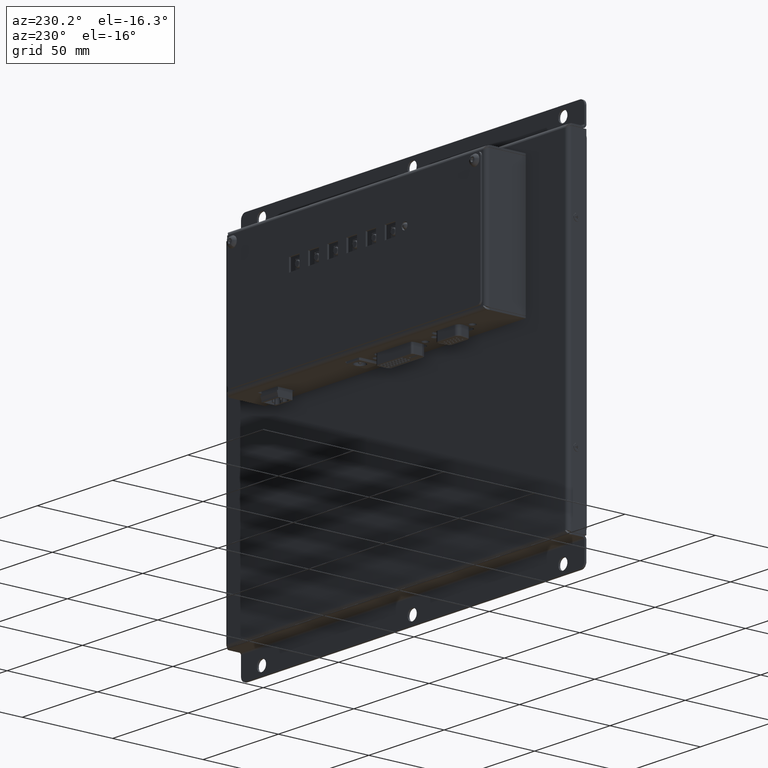
[diagram: clean part render]
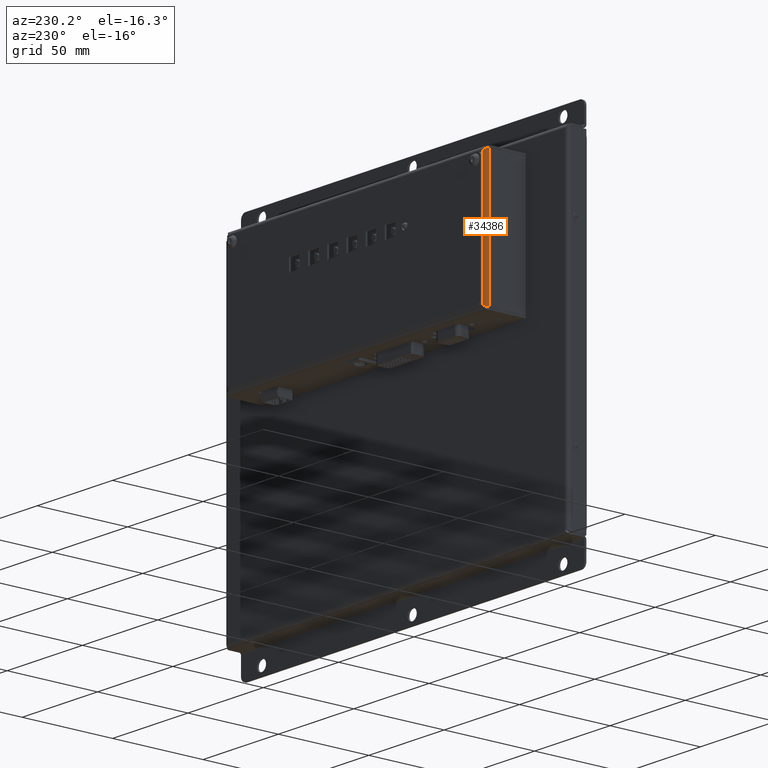
[diagram: same view with one face highlighted and labeled with its STEP entity id]
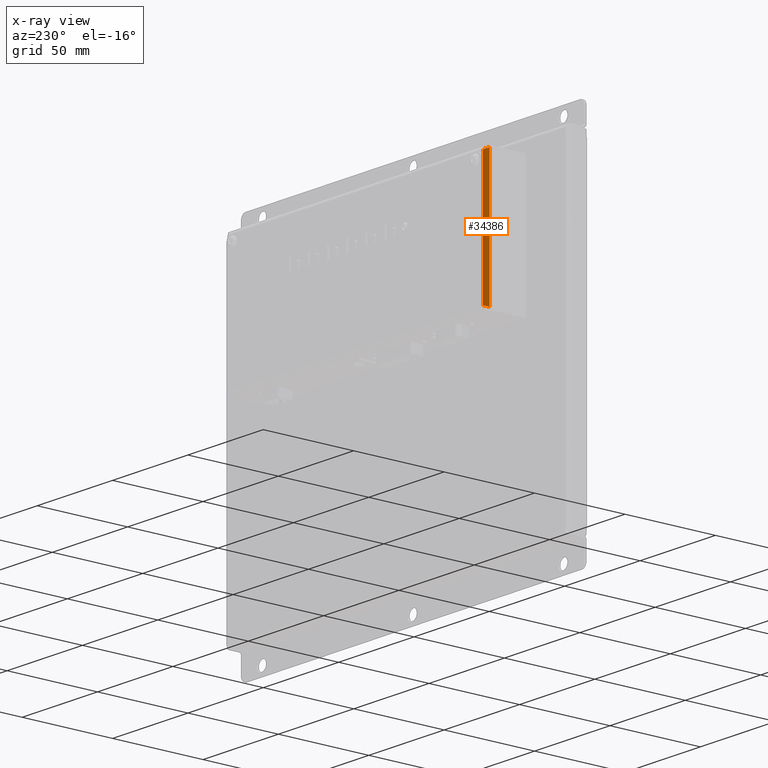
[diagram: x-ray of the same camera — body ghosted, the highlighted face saturated]
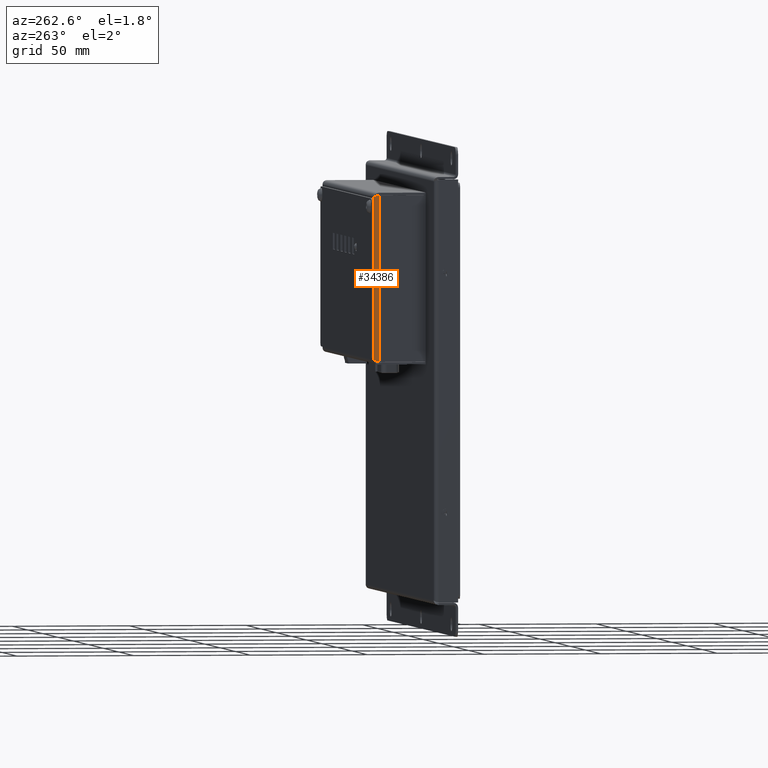
[diagram: same view with one face highlighted and labeled with its STEP entity id]
A machine part, auxiliary view. The second image highlights one B-rep face of the part: STEP entity #34386.
The next image is the same camera in x-ray: the body ghosted, the highlighted face saturated — about 0% of this face is hidden behind the body in this view.
A second angle (auxiliary view) of the same face is appended — the face is thin or edge-on in the first view.
In plain terms, the highlighted cylindrical surface (edge-blend (fillet) strip) has radius 2 mm, axis along (-0, 0, 1).
Its self-contained STEP definition (entity closure, byte-faithful):
#590=B_SPLINE_CURVE_WITH_KNOTS('',3,(#57881,#57882,#57883,#57884),
 .UNSPECIFIED.,.F.,.F.,(4,4),(-1.,-0.763258696678545),.UNSPECIFIED.);
#594=B_SPLINE_CURVE_WITH_KNOTS('',3,(#57974,#57975,#57976,#57977),
 .UNSPECIFIED.,.F.,.F.,(4,4),(-1.,-0.763258696678538),.UNSPECIFIED.);
#595=B_SPLINE_CURVE_WITH_KNOTS('',3,(#57978,#57979,#57980,#57981,#57982,
#57983,#57984),.UNSPECIFIED.,.F.,.F.,(4,3,4),(-0.763258696678538,-0.327110870012876,
0.),.UNSPECIFIED.);
#596=B_SPLINE_CURVE_WITH_KNOTS('',3,(#57985,#57986,#57987,#57988,#57989,
#57990,#57991),.UNSPECIFIED.,.F.,.F.,(4,3,4),(-0.763258696678545,-0.327110870012873,
0.),.UNSPECIFIED.);
#1057=CYLINDRICAL_SURFACE('',#37465,2.);
#4232=FACE_OUTER_BOUND('',#6310,.T.);
#6310=EDGE_LOOP('',(#30194,#30195,#30196,#30197,#30198,#30199));
#9545=LINE('',#57286,#12766);
#9656=LINE('',#57972,#12877);
#12766=VECTOR('',#45252,10.);
#12877=VECTOR('',#45607,10.);
#16978=VERTEX_POINT('',#57279);
#16981=VERTEX_POINT('',#57284);
#17107=VERTEX_POINT('',#57829);
#17110=VERTEX_POINT('',#57879);
#17116=VERTEX_POINT('',#57971);
#17117=VERTEX_POINT('',#57973);
#21400=EDGE_CURVE('',#16981,#16978,#9545,.T.);
#21582=EDGE_CURVE('',#17110,#17107,#590,.T.);
#21594=EDGE_CURVE('',#17116,#17110,#9656,.T.);
#21595=EDGE_CURVE('',#17116,#17117,#594,.T.);
#21596=EDGE_CURVE('',#17117,#16978,#595,.T.);
#21597=EDGE_CURVE('',#17107,#16981,#596,.T.);
#30194=ORIENTED_EDGE('',*,*,#21582,.F.);
#30195=ORIENTED_EDGE('',*,*,#21594,.F.);
#30196=ORIENTED_EDGE('',*,*,#21595,.T.);
#30197=ORIENTED_EDGE('',*,*,#21596,.T.);
#30198=ORIENTED_EDGE('',*,*,#21400,.F.);
#30199=ORIENTED_EDGE('',*,*,#21597,.F.);
#34386=ADVANCED_FACE('',(#4232),#1057,.T.);
#37465=AXIS2_PLACEMENT_3D('',#57970,#45605,#45606);
#45252=DIRECTION('',(0.,1.,0.));
#45605=DIRECTION('center_axis',(0.,1.,0.));
#45606=DIRECTION('ref_axis',(0.,0.,1.));
#45607=DIRECTION('',(-4.42712624180909E-18,-1.,7.59307267945326E-33));
#57279=CARTESIAN_POINT('',(84.5,34.5,1.38777878078145E-16));
#57284=CARTESIAN_POINT('',(84.5,-34.5,1.38777878078145E-16));
#57286=CARTESIAN_POINT('',(84.5,-17.75,0.));
#57829=CARTESIAN_POINT('',(86.363297267953,-35.1869328269982,-1.27327908298792));
#57879=CARTESIAN_POINT('',(86.5,-35.4,-2.00000000000002));
#57881=CARTESIAN_POINT('Ctrl Pts',(86.5,-35.4,-2.00000000000002));
#57882=CARTESIAN_POINT('Ctrl Pts',(86.5,-35.3289776090037,-1.75208508689473));
#57883=CARTESIAN_POINT('Ctrl Pts',(86.4521928227542,-35.2579552180072,-1.5039185667819));
#57884=CARTESIAN_POINT('Ctrl Pts',(86.3622294734653,-35.1869328270108,-1.27257576594918));
#57970=CARTESIAN_POINT('Origin',(84.5,-17.25,-2.));
#57971=CARTESIAN_POINT('',(86.5,35.4,-2.00000000000002));
#57972=CARTESIAN_POINT('',(86.5,1.52643269932482E-14,-2.00000000000001));
#57973=CARTESIAN_POINT('',(86.363297267953,35.1869328269982,-1.27327908298788));
#57974=CARTESIAN_POINT('Ctrl Pts',(86.5,35.4,-2.00000000000002));
#57975=CARTESIAN_POINT('Ctrl Pts',(86.5,35.3289776090036,-1.7520850868947));
#57976=CARTESIAN_POINT('Ctrl Pts',(86.4521928227542,35.2579552180071,-1.50391856678186));
#57977=CARTESIAN_POINT('Ctrl Pts',(86.3622294734653,35.1869328270107,-1.27257576594913));
#57978=CARTESIAN_POINT('Ctrl Pts',(86.3632972679554,35.1869328270107,-1.27327908298309));
#57979=CARTESIAN_POINT('Ctrl Pts',(86.1973385788981,35.0560884790109,-0.847764467025351));
#57980=CARTESIAN_POINT('Ctrl Pts',(85.8801930770167,34.9252441310108,-0.483070891437384));
#57981=CARTESIAN_POINT('Ctrl Pts',(85.4831195358741,34.794399783011,-0.258348923209422));
#57982=CARTESIAN_POINT('Ctrl Pts',(85.1853143800047,34.696266522007,-0.0898074470314289));
#57983=CARTESIAN_POINT('Ctrl Pts',(84.8425497020472,34.5981332610032,7.63994677294231E-16));
#57984=CARTESIAN_POINT('Ctrl Pts',(84.5,34.5000000000001,8.32667268468867E-16));
#57985=CARTESIAN_POINT('Ctrl Pts',(86.3632972679555,-35.1869328270107,-1.27327908298312));
#57986=CARTESIAN_POINT('Ctrl Pts',(86.1973385788981,-35.056088479011,-0.847764467025362));
#57987=CARTESIAN_POINT('Ctrl Pts',(85.8801930770167,-34.925244131011,-0.483070891437373));
#57988=CARTESIAN_POINT('Ctrl Pts',(85.4831195358741,-34.7943997830115,-0.258348923209409));
#57989=CARTESIAN_POINT('Ctrl Pts',(85.1853143800047,-34.6962665220078,-0.0898074470314192));
#57990=CARTESIAN_POINT('Ctrl Pts',(84.8425497020472,-34.5981332610044,6.83361888126202E-16));
#57991=CARTESIAN_POINT('Ctrl Pts',(84.5,-34.5,8.32667268468867E-16));